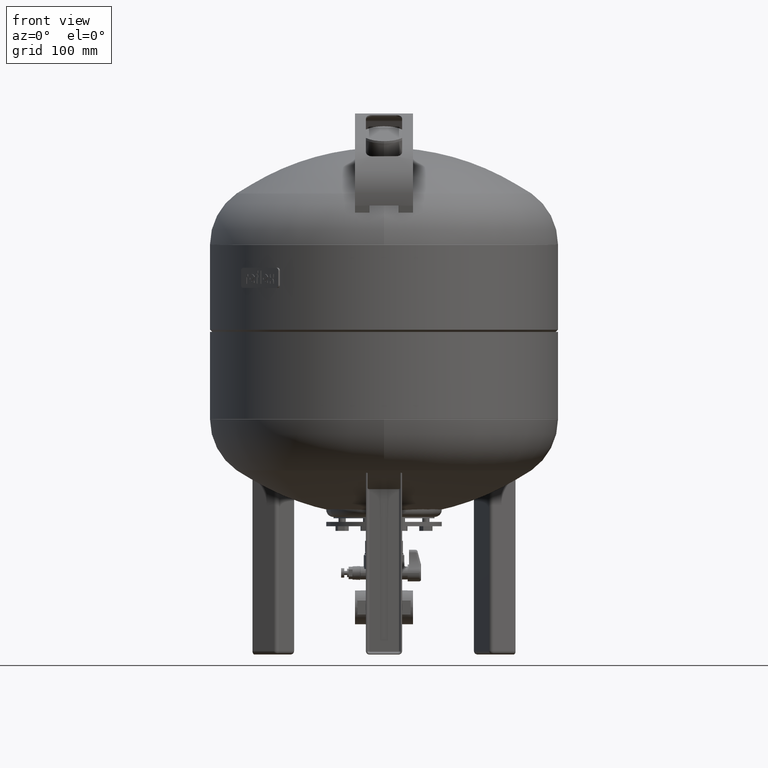
[diagram: clean part render]
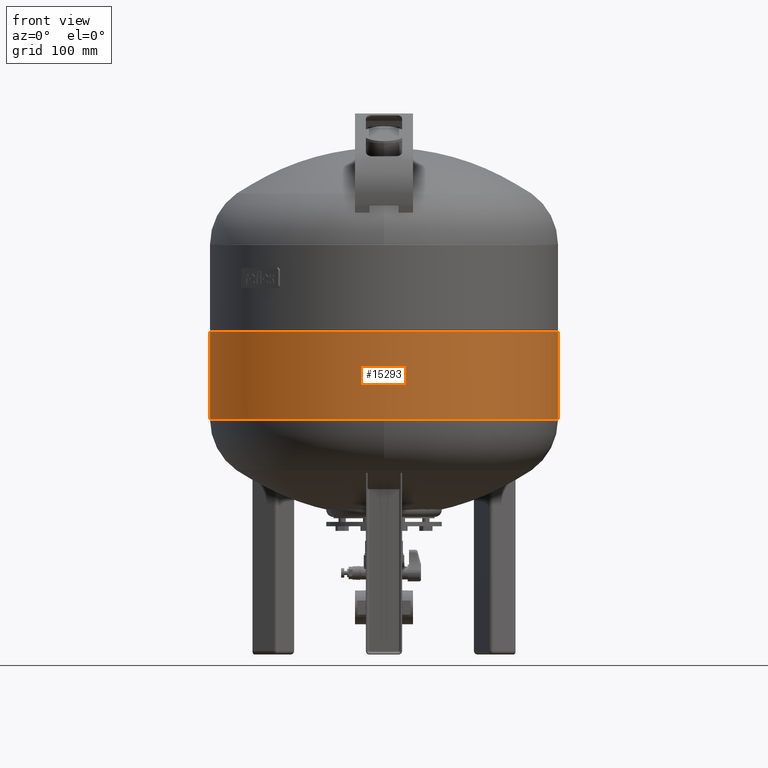
[diagram: same view with one face highlighted and labeled with its STEP entity id]
A machine part, front view. The second image highlights one B-rep face of the part: STEP entity #15293.
In plain terms, the highlighted cylindrical surface (partial cylindrical patch) has radius 240 mm, axis along (0, 0, -1).
Its self-contained STEP definition (entity closure, byte-faithful):
#15093=CARTESIAN_POINT('',(240.0,2.204364E-014,325.000000000000060));
#15094=VERTEX_POINT('',#15093);
#15095=CARTESIAN_POINT('',(239.999999999999970,-1.305246E-029,445.000000000000060));
#15096=VERTEX_POINT('',#15095);
#15097=CARTESIAN_POINT('',(240.0,2.204364E-014,325.000000000000060));
#15098=DIRECTION('',(0.0,0.0,1.0));
#15099=VECTOR('',#15098,120.0);
#15100=LINE('',#15097,#15099);
#15101=EDGE_CURVE('',#15094,#15096,#15100,.T.);
#15103=CARTESIAN_POINT('',(-240.0,5.143419E-014,325.0));
#15104=VERTEX_POINT('',#15103);
#15112=CARTESIAN_POINT('',(-240.0,2.939055E-014,445.0));
#15113=VERTEX_POINT('',#15112);
#15114=CARTESIAN_POINT('',(-240.0,5.143419E-014,325.0));
#15115=DIRECTION('',(0.0,0.0,1.0));
#15116=VECTOR('',#15115,120.0);
#15117=LINE('',#15114,#15116);
#15118=EDGE_CURVE('',#15104,#15113,#15117,.T.);
#15261=CARTESIAN_POINT('',(-3.944305E-030,-6.526229E-030,445.000000000000060));
#15262=DIRECTION('',(0.0,0.0,-1.0));
#15263=DIRECTION('',(1.0,0.0,0.0));
#15264=AXIS2_PLACEMENT_3D('',#15261,#15262,#15263);
#15265=CIRCLE('',#15264,239.999999999999970);
#15266=EDGE_CURVE('',#15096,#15113,#15265,.T.);
#15276=CARTESIAN_POINT('',(7.347881E-015,1.102182E-014,385.000000000000060));
#15277=DIRECTION('',(1.224647E-016,1.836970E-016,-1.0));
#15278=DIRECTION('',(1.0,0.0,0.0));
#15279=AXIS2_PLACEMENT_3D('',#15276,#15277,#15278);
#15280=CYLINDRICAL_SURFACE('',#15279,240.0);
#15281=ORIENTED_EDGE('',*,*,#15101,.T.);
#15282=ORIENTED_EDGE('',*,*,#15266,.T.);
#15283=ORIENTED_EDGE('',*,*,#15118,.F.);
#15284=CARTESIAN_POINT('',(1.469576E-014,2.204364E-014,325.0));
#15285=DIRECTION('',(0.0,0.0,-1.0));
#15286=DIRECTION('',(1.0,0.0,0.0));
#15287=AXIS2_PLACEMENT_3D('',#15284,#15285,#15286);
#15288=CIRCLE('',#15287,240.0);
#15289=EDGE_CURVE('',#15094,#15104,#15288,.T.);
#15290=ORIENTED_EDGE('',*,*,#15289,.F.);
#15291=EDGE_LOOP('',(#15281,#15282,#15283,#15290));
#15292=FACE_OUTER_BOUND('',#15291,.T.);
#15293=ADVANCED_FACE('',(#15292),#15280,.T.);